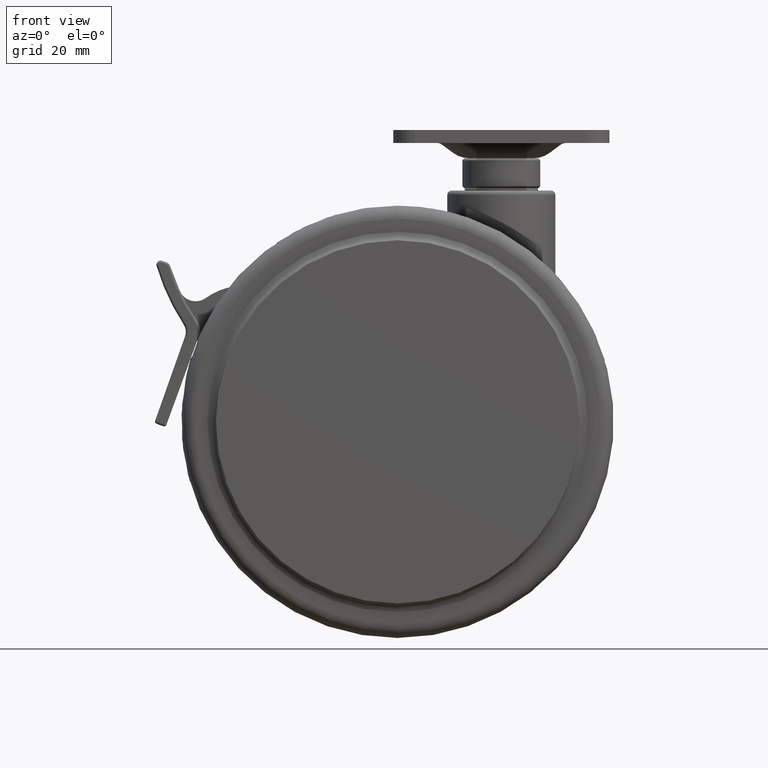
[diagram: clean part render]
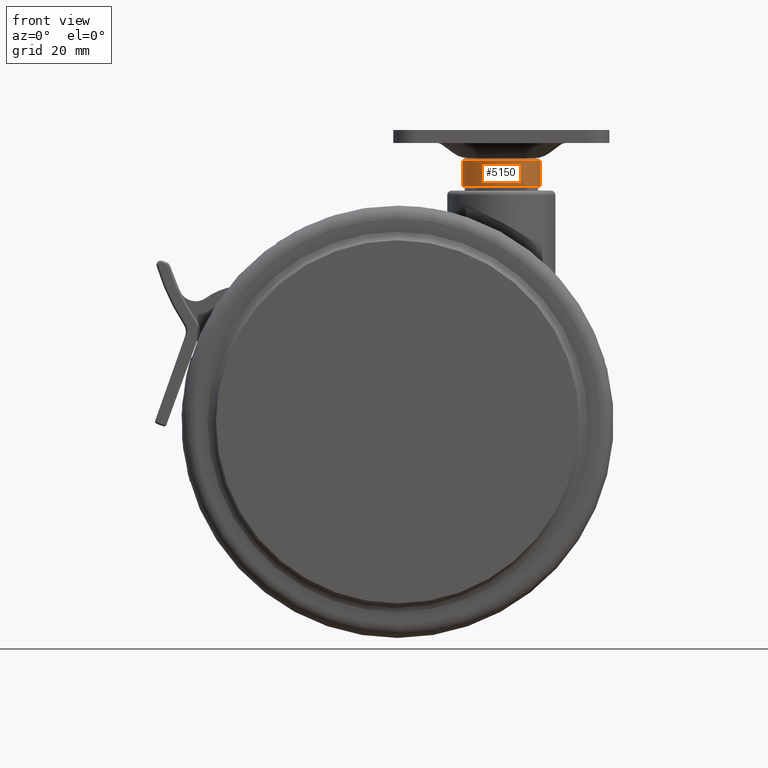
[diagram: same view with one face highlighted and labeled with its STEP entity id]
A machine part, front view. The second image highlights one B-rep face of the part: STEP entity #5150.
In plain terms, the highlighted cylindrical surface (partial cylindrical patch) has radius 9 mm, axis along (0, 0, -1).
Its self-contained STEP definition (entity closure, byte-faithful):
#250 = VERTEX_POINT ( 'NONE', #6954 ) ;
#531 = EDGE_LOOP ( 'NONE', ( #2791, #8089, #3005, #8502 ) ) ;
#548 = CARTESIAN_POINT ( 'NONE',  ( 9.000000000000000000, 0.0000000000000000000, 1.000000000000000000 ) ) ;
#579 = CARTESIAN_POINT ( 'NONE',  ( 0.0000000000000000000, 0.0000000000000000000, 1.000000000000000000 ) ) ;
#718 = VERTEX_POINT ( 'NONE', #548 ) ;
#1183 = LINE ( 'NONE', #2978, #2542 ) ;
#1200 = DIRECTION ( 'NONE',  ( 0.0000000000000000000, 0.0000000000000000000, -1.000000000000000000 ) ) ;
#1261 = DIRECTION ( 'NONE',  ( -1.000000000000000000, 0.0000000000000000000, 0.0000000000000000000 ) ) ;
#1327 = EDGE_CURVE ( 'NONE', #3658, #2980, #7868, .T. ) ;
#1377 = CYLINDRICAL_SURFACE ( 'NONE', #6137, 9.000000000000000000 ) ;
#1697 = DIRECTION ( 'NONE',  ( 0.0000000000000000000, 0.0000000000000000000, -1.000000000000000000 ) ) ;
#1785 = FACE_OUTER_BOUND ( 'NONE', #531, .T. ) ;
#2026 = CARTESIAN_POINT ( 'NONE',  ( 0.0000000000000000000, 0.0000000000000000000, 7.000000000000000000 ) ) ;
#2542 = VECTOR ( 'NONE', #7635, 1000.000000000000000 ) ;
#2549 = DIRECTION ( 'NONE',  ( -1.000000000000000000, 0.0000000000000000000, 0.0000000000000000000 ) ) ;
#2791 = ORIENTED_EDGE ( 'NONE', *, *, #3687, .F. ) ;
#2922 = AXIS2_PLACEMENT_3D ( 'NONE', #2026, #1697, #3710 ) ;
#2925 = EDGE_CURVE ( 'NONE', #2980, #250, #7350, .T. ) ;
#2978 = CARTESIAN_POINT ( 'NONE',  ( 9.000000000000000000, 1.102182119232617700E-015, 0.0000000000000000000 ) ) ;
#2980 = VERTEX_POINT ( 'NONE', #8115 ) ;
#3005 = ORIENTED_EDGE ( 'NONE', *, *, #2925, .T. ) ;
#3658 = VERTEX_POINT ( 'NONE', #6261 ) ;
#3687 = EDGE_CURVE ( 'NONE', #3658, #718, #1183, .T. ) ;
#3710 = DIRECTION ( 'NONE',  ( -1.000000000000000000, 0.0000000000000000000, 0.0000000000000000000 ) ) ;
#3903 = EDGE_CURVE ( 'NONE', #718, #250, #4208, .T. ) ;
#4208 = CIRCLE ( 'NONE', #5383, 9.000000000000000000 ) ;
#4782 = DIRECTION ( 'NONE',  ( 0.0000000000000000000, 0.0000000000000000000, -1.000000000000000000 ) ) ;
#5150 = ADVANCED_FACE ( 'NONE', ( #1785 ), #1377, .T. ) ;
#5244 = DIRECTION ( 'NONE',  ( 0.0000000000000000000, 0.0000000000000000000, -1.000000000000000000 ) ) ;
#5383 = AXIS2_PLACEMENT_3D ( 'NONE', #579, #5244, #1261 ) ;
#6137 = AXIS2_PLACEMENT_3D ( 'NONE', #6520, #1200, #2549 ) ;
#6261 = CARTESIAN_POINT ( 'NONE',  ( 9.000000000000000000, 1.102182119232617700E-015, 7.000000000000000000 ) ) ;
#6520 = CARTESIAN_POINT ( 'NONE',  ( 0.0000000000000000000, 0.0000000000000000000, 0.0000000000000000000 ) ) ;
#6954 = CARTESIAN_POINT ( 'NONE',  ( -9.000000000000000000, 1.102182119232617700E-015, 1.000000000000000000 ) ) ;
#7134 = VECTOR ( 'NONE', #4782, 1000.000000000000000 ) ;
#7350 = LINE ( 'NONE', #8079, #7134 ) ;
#7635 = DIRECTION ( 'NONE',  ( 0.0000000000000000000, 0.0000000000000000000, -1.000000000000000000 ) ) ;
#7868 = CIRCLE ( 'NONE', #2922, 9.000000000000000000 ) ;
#8079 = CARTESIAN_POINT ( 'NONE',  ( -9.000000000000000000, 0.0000000000000000000, 0.0000000000000000000 ) ) ;
#8089 = ORIENTED_EDGE ( 'NONE', *, *, #1327, .T. ) ;
#8115 = CARTESIAN_POINT ( 'NONE',  ( -9.000000000000000000, 0.0000000000000000000, 7.000000000000000000 ) ) ;
#8502 = ORIENTED_EDGE ( 'NONE', *, *, #3903, .F. ) ;